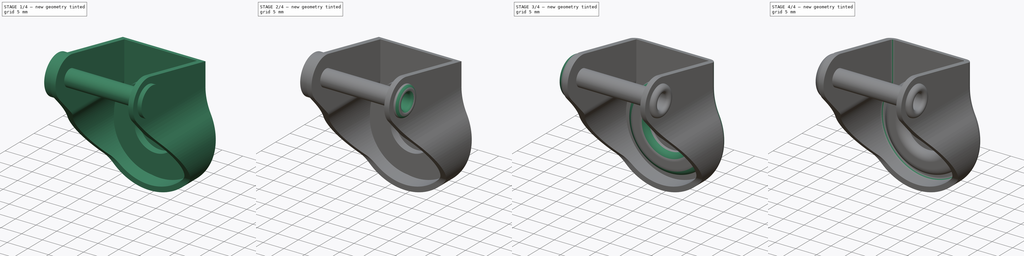
[diagram: build sequence overview — one tinted view per stage of 4, left to right]
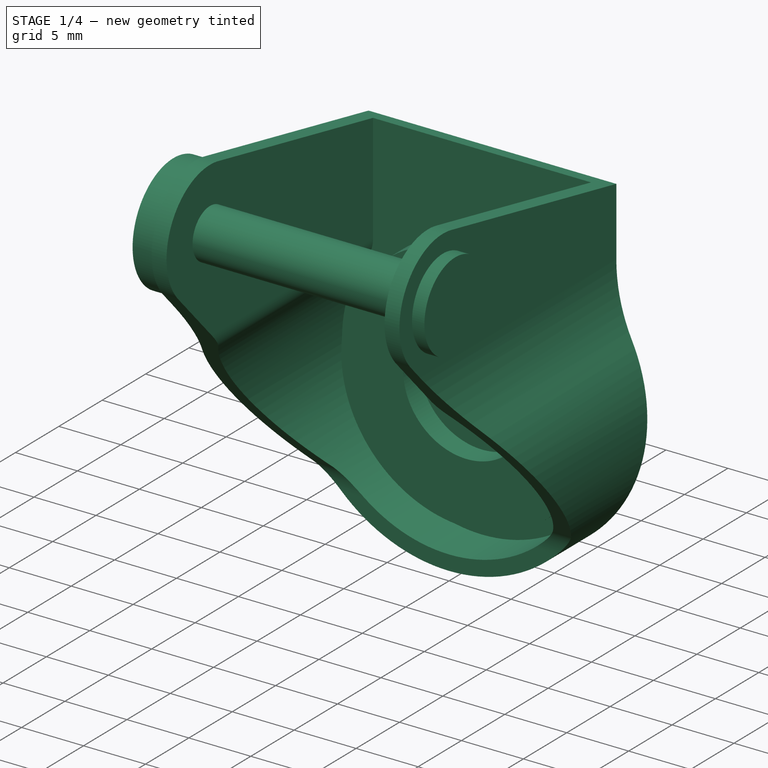
[diagram: stage 1 of 4 — iso view after this stage's code; geometry added in this stage tinted green]
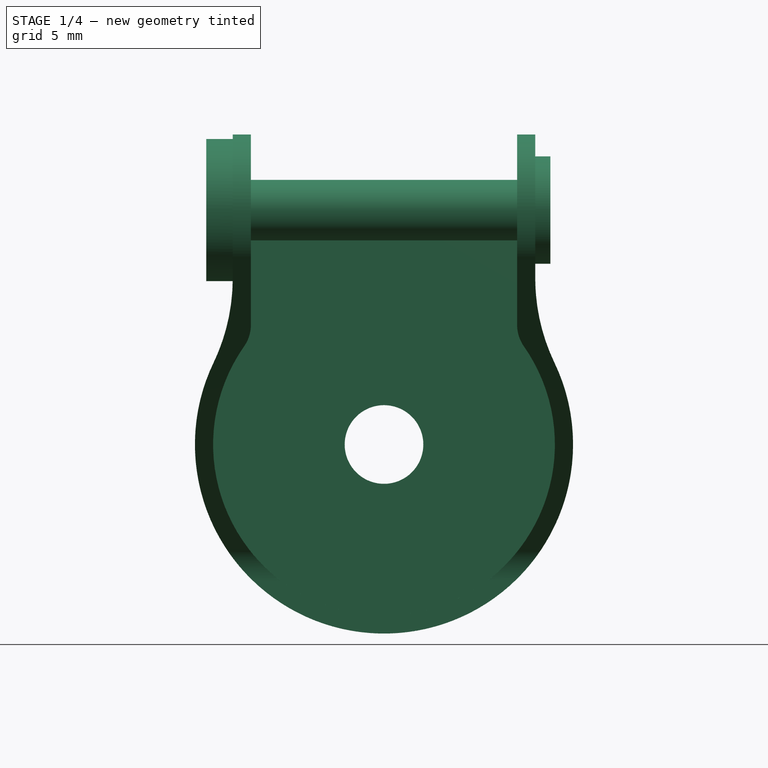
[diagram: stage 1 of 4 — front view after this stage's code; geometry added in this stage tinted green]
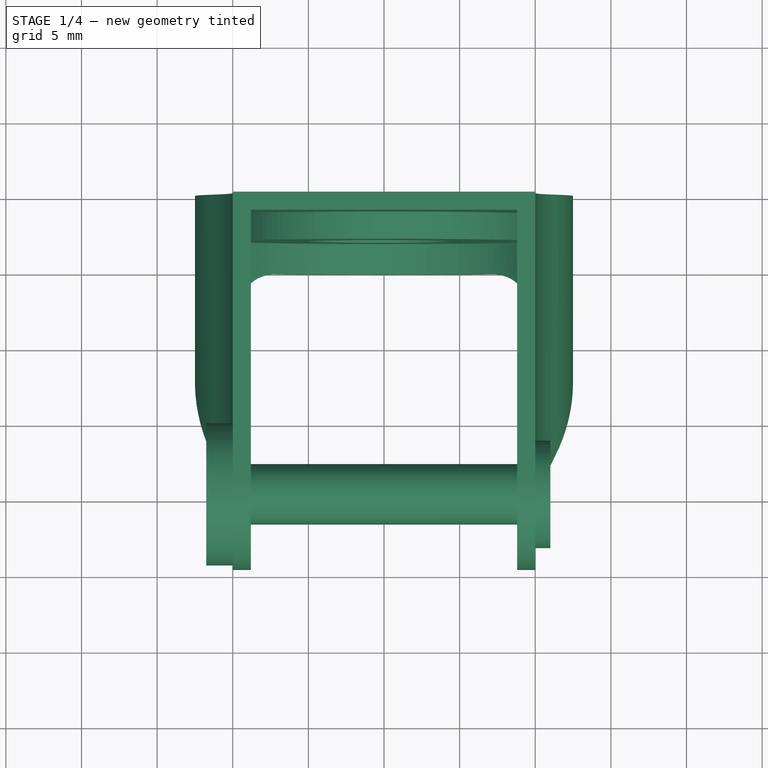
[diagram: stage 1 of 4 — top view after this stage's code; geometry added in this stage tinted green]
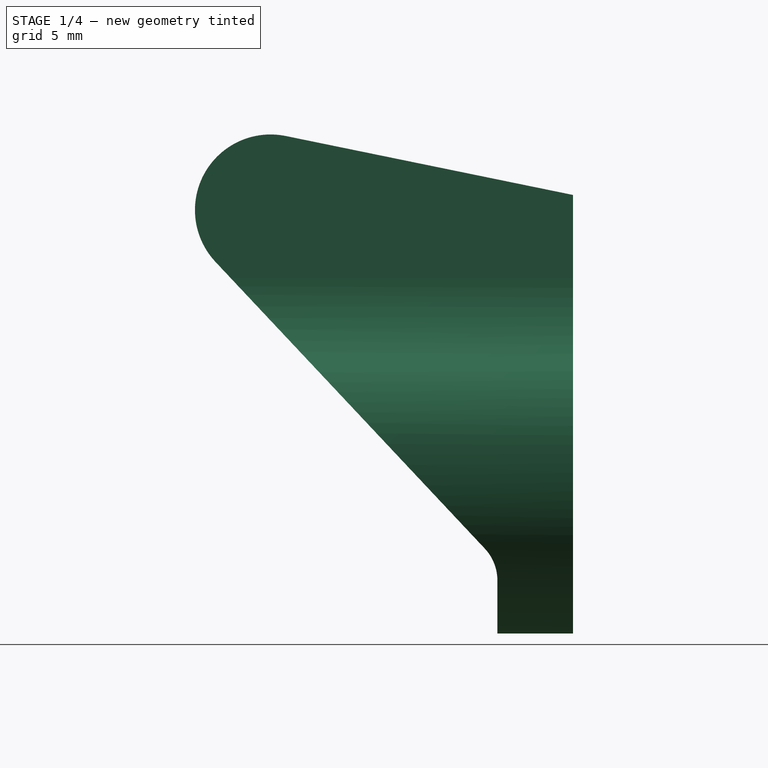
[diagram: stage 1 of 4 — right view after this stage's code; geometry added in this stage tinted green]
FCSTD DOCUMENT  (FreeCAD 0.17R13522 (Git))
Label: Caster-40mm_Wheel_support
License: All rights reserved
LicenseURL: http://en.wikipedia.org/wiki/All_rights_reserved
objects: Sketcher::SketchObject×9, PartDesign::Fillet×7, PartDesign::Pocket×6, PartDesign::Pad×4, PartDesign::Plane×1, PartDesign::Body×1
note: 38 computed .brp shape members not serialized (recipe doc carries the construction recipe); baked Part::Feature solids carry a one-line shape summary decoded from their .brp

FEATURE [Sketcher::SketchObject] Sketch
  MapMode = 5
  Placement = pos=(0,0,0) rot=(1,0,0;1.5708rad)
  Support = -> [XZ_Plane]
  sketch-geometry (7):
    g0: ArcOfCircle CenterX=0 CenterY=0 CenterZ=0 NormalX=0 NormalY=0 NormalZ=1 AngleXU=0 Radius=12.5 StartAngle=2.69464 EndAngle=6.73014
    g1: Circle CenterX=0 CenterY=0 CenterZ=0 NormalX=0 NormalY=0 NormalZ=1 AngleXU=0 Radius=2.6
    g2: LineSegment StartX=10 StartY=20.5 StartZ=0 EndX=-10 EndY=20.5 EndZ=0
    g3: ArcOfCircle CenterX=-22.95 CenterY=11 CenterZ=0 NormalX=0 NormalY=0 NormalZ=1 AngleXU=0 Radius=12.95 StartAngle=5.83623 EndAngle=6.28319
    g4: ArcOfCircle CenterX=22.95 CenterY=11 CenterZ=0 NormalX=0 NormalY=0 NormalZ=1 AngleXU=0 Radius=12.95 StartAngle=3.14159 EndAngle=3.58855
    g5: LineSegment StartX=-10 StartY=11 StartZ=0 EndX=-10 EndY=20.5 EndZ=0
    g6: LineSegment StartX=10 StartY=11 StartZ=0 EndX=10 EndY=20.5 EndZ=0
  constraints (20):
    c: Coincident(g0,g-1)
    c: Radius(g0) = 12.5
    c: Coincident(g1,g-1)
    c: Radius(g1) = 2.6
    c: Horizontal(g2)
    c: DistanceX(g2,g2) = 20
    c: DistanceY(g2) = 20.5
    c: Symmetric(g2,g2,g-2)
    c: Coincident(g5,g2)
    c: Vertical(g5)
    c: Coincident(g6,g2)
    c: Vertical(g6)
    c: Equal(g6,g5)
    c: Tangent(g5,g3) = -1.5708
    c: Tangent(g6,g4) = 1.5708
    c: Tangent(g3,g0) = 1.5708
    c: Tangent(g4,g0) = 1.5708
    c: Symmetric(g0,g0,g-2)
    c: Equal(g3,g4)
    c: DistanceY(g6,g6) = 9.5
FEATURE [PartDesign::Pad] Pad
  Length = 25
  Length2 = 100
  Placement = pos=(0,0,0) rot=(1,0,0;1.5708rad)
  Profile = -> Sketch
  Type = 0
FEATURE [Sketcher::SketchObject] Sketch001
  MapMode = 5
  Placement = pos=(10,0,0) rot=(0.707107,0,0.707107;3.14159rad)
  Support = -> [Pad]
  sketch-geometry (10):
    g0: LineSegment StartX=-12.5 StartY=5 StartZ=0 EndX=-9 EndY=5 EndZ=0
    g1: LineSegment StartX=-6.87283 StartY=5.84245 StartZ=0 EndX=12.0765 EndY=23.6442 EndZ=0
    g2: LineSegment StartX=20.3979 StartY=18.9949 StartZ=0 EndX=16.5 EndY=0 EndZ=0
    g3: LineSegment StartX=16.5 StartY=0 StartZ=0 EndX=21 EndY=0 EndZ=0
    g4: LineSegment StartX=21 StartY=0 StartZ=0 EndX=21 EndY=26 EndZ=0
    g5: LineSegment StartX=21 StartY=26 StartZ=0 EndX=-12.5 EndY=26 EndZ=0
    g6: LineSegment StartX=-12.5 StartY=26 StartZ=0 EndX=-12.5 EndY=5 EndZ=0
    g7: ArcOfCircle CenterX=15.5 CenterY=20 CenterZ=0 NormalX=0 NormalY=0 NormalZ=1 AngleXU=0 Radius=5 StartAngle=6.08079 EndAngle=8.60816
    g8: ArcOfCircle CenterX=-9 CenterY=8.10676 CenterZ=0 NormalX=0 NormalY=0 NormalZ=1 AngleXU=0 Radius=3.10676 StartAngle=4.71239 EndAngle=5.46657
    g9: Circle CenterX=15.5 CenterY=20 CenterZ=0 NormalX=0 NormalY=0 NormalZ=1 AngleXU=0 Radius=2
  constraints (26):
    c: Horizontal(g0)
    c: Coincident(g2,g3)
    c: Horizontal(g3)
    c: Coincident(g3,g4)
    c: Vertical(g4)
    c: Coincident(g4,g5)
    c: Horizontal(g5)
    c: Coincident(g5,g6)
    c: Vertical(g6)
    c: Coincident(g0,g6)
    c: Tangent(g7,g1) = 1.5708
    c: Tangent(g7,g2) = 1.5708
    c: DistanceY(g7) = 20
    c: DistanceX(g7) = 15.5
    c: Radius(g7) = 5
    c: DistanceX(g0) = -12.5
    c: DistanceY(g0) = 5
    c: DistanceY(g5) = 26
    c: PointOnObject(g2,g-1)
    c: Tangent(g0,g8) = -1.5708
    c: Tangent(g1,g8) = -1.5708
    c: DistanceX(g0,g0) = 3.5
    c: Radius(g9) = 2
    c: Coincident(g9,g7)
    c: DistanceX(g3) = 21
    c: DistanceX(g3,g3) = 4.5
FEATURE [PartDesign::Pocket] Pocket
  BaseFeature = -> Pad
  Length = 5
  Length2 = 100
  Midplane = true
  Placement = pos=(0,0,0) rot=(1,0,0;1.5708rad)
  Profile = -> Sketch001
  Type = 1
FEATURE [PartDesign::Plane] DatumPlane
  AttachmentOffset = pos=(0,0,-26) rot=(0,0,1;0rad)
  MapMode = 5
  Placement = pos=(0,-26,-3e-12) rot=(-1,0,0;1.5708rad)
  Support = -> [Pocket]
FEATURE [Sketcher::SketchObject] Sketch002
  MapMode = 5
  Placement = pos=(0,-26,-3e-12) rot=(-1,0,0;1.5708rad)
  Support = -> [DatumPlane]
  sketch-geometry (6):
    g0: LineSegment StartX=-8.8 StartY=-22 StartZ=0 EndX=8.8 EndY=-22 EndZ=0
    g1: LineSegment StartX=8.8 StartY=-22 StartZ=0 EndX=8.8 EndY=-7.92149 EndZ=0
    g2: LineSegment StartX=-8.8 StartY=-7.92149 StartZ=0 EndX=-8.8 EndY=-22 EndZ=0
    g3: ArcOfCircle CenterX=-11.3 CenterY=-7.92149 CenterZ=0 NormalX=0 NormalY=0 NormalZ=1 AngleXU=0 Radius=2.5 StartAngle=0 EndAngle=0.611408
    g4: ArcOfCircle CenterX=11.3 CenterY=-7.92149 CenterZ=0 NormalX=0 NormalY=0 NormalZ=1 AngleXU=0 Radius=2.5 StartAngle=2.53018 EndAngle=3.14159
    g5: ArcOfCircle CenterX=0 CenterY=0 CenterZ=0 NormalX=0 NormalY=0 NormalZ=1 AngleXU=0 Radius=11.3 StartAngle=5.67178 EndAngle=10.0362
  constraints (17):
    c: Coincident(g0,g1)
    c: Coincident(g2,g0)
    c: Vertical(g1)
    c: Vertical(g2)
    c: Symmetric(g0,g0,g-2)
    c: DistanceX(g0,g0) = 17.6
    c: Tangent(g5,g4) = 1.5708
    c: Tangent(g4,g1) = 1.5708
    c: Tangent(g3,g5) = 1.5708
    c: Tangent(g2,g3) = 1.5708
    c: Radius(g5) = 11.3
    c: Radius(g3) = 2.5
    c: Equal(g3,g4)
    c: Equal(g2,g1)
    c: Symmetric(g3,g4,g-2)
    c: DistanceY(g0) = -22
    c: Coincident(g5,g-1)
FEATURE [PartDesign::Pocket] Pocket001
  BaseFeature = -> Pocket
  Length = 23
  Length2 = 100
  Placement = pos=(0,0,0) rot=(1,0,0;1.5708rad)
  Profile = -> Sketch002
  Reversed = true
  Type = 0
FEATURE [Sketcher::SketchObject] Sketch003
  MapMode = 5
  Placement = pos=(0,-3,0) rot=(1,0,0;1.5708rad)
  Support = -> [Pocket001]
  sketch-geometry (7):
    g0: Circle CenterX=0 CenterY=0 CenterZ=0 NormalX=0 NormalY=0 NormalZ=1 AngleXU=0 Radius=10.1
    g1: LineSegment StartX=8.8 StartY=7.92149 StartZ=0 EndX=8.8 EndY=17.4215 EndZ=0
    g2: LineSegment StartX=8.8 StartY=17.4215 StartZ=0 EndX=-8.8 EndY=17.4215 EndZ=0
    g3: LineSegment StartX=-8.8 StartY=17.4215 StartZ=0 EndX=-8.8 EndY=7.92149 EndZ=0
    g4: ArcOfCircle CenterX=0 CenterY=0 CenterZ=0 NormalX=0 NormalY=0 NormalZ=1 AngleXU=0 Radius=11.3 StartAngle=2.53018 EndAngle=6.89459
    g5: ArcOfCircle CenterX=-11.3 CenterY=7.92149 CenterZ=0 NormalX=0 NormalY=0 NormalZ=1 AngleXU=0 Radius=2.5 StartAngle=5.67178 EndAngle=6.28319
    g6: ArcOfCircle CenterX=11.3 CenterY=7.92149 CenterZ=0 NormalX=0 NormalY=0 NormalZ=1 AngleXU=0 Radius=2.5 StartAngle=3.14159 EndAngle=3.753
  constraints (19):
    c: Coincident(g1,g2)
    c: Coincident(g2,g3)
    c: Horizontal(g2)
    c: Vertical(g1)
    c: Vertical(g3)
    c: Coincident(g0,g-1)
    c: DistanceX(g2,g2) = 17.6
    c: Symmetric(g2,g1,g-2)
    c: Tangent(g5,g3) = 1.5708
    c: Tangent(g5,g4) = 1.5708
    c: Tangent(g4,g6) = 1.5708
    c: Tangent(g6,g1) = 1.5708
    c: Radius(g0) = 10.1
    c: Radius(g4) = 11.3
    c: Coincident(g-1,g4)
    c: Radius(g5) = 2.5
    c: Equal(g5,g6)
    c: Equal(g3,g1)
    c: DistanceY(g3,g3) = 9.5
FEATURE [PartDesign::Pocket] Pocket002
  BaseFeature = -> Pocket001
  Length = 1.8
  Length2 = 100
  Placement = pos=(0,0,0) rot=(1,0,0;1.5708rad)
  Profile = -> Sketch003
  Type = 0
FEATURE [Sketcher::SketchObject] Sketch004
  MapMode = 5
  Placement = pos=(0,0,0) rot=(-1,0,0;1.5708rad)
  Support = -> [Pocket002]
  sketch-geometry (2):
    g0: Circle CenterX=0 CenterY=0 CenterZ=0 NormalX=0 NormalY=0 NormalZ=1 AngleXU=0 Radius=8.9
    g1: Circle CenterX=0 CenterY=0 CenterZ=0 NormalX=0 NormalY=0 NormalZ=1 AngleXU=0 Radius=6.3
  constraints (2):
    c: Radius(g0) = 8.9
    c: Radius(g1) = 6.3
FEATURE [PartDesign::Pocket] Pocket003
  BaseFeature = -> Pocket002
  Length = 1.8
  Length2 = 100
  Placement = pos=(0,0,0) rot=(1,0,0;1.5708rad)
  Profile = -> Sketch004
  Type = 0
FEATURE [Sketcher::SketchObject] Sketch005
  MapMode = 5
  Placement = pos=(0,-3,0) rot=(1,0,0;1.5708rad)
  sketch-geometry (1):
    g0: Circle CenterX=0 CenterY=0 CenterZ=0 NormalX=0 NormalY=0 NormalZ=1 AngleXU=0 Radius=5.1
  constraints (2):
    c: Radius(g0) = 5.1
    c: Coincident(g0,g-1)
FEATURE [PartDesign::Pocket] Pocket004
  BaseFeature = -> Pocket003
  Length = 1.8
  Length2 = 100
  Placement = pos=(0,0,0) rot=(1,0,0;1.5708rad)
  Profile = -> Sketch005
  Type = 0
FEATURE [PartDesign::Body] Body
  Group = -> [Sketch,Pad,Sketch001,Pocket,DatumPlane,Sketch002,Pocket001,Sketch003,Pocket002,Sketch004,Pocket003,Sketch005,Pocket004,Sketch006,Pad001,Sketch007,Pad003,Pad004,Sketch008,Pocket005,Fillet,Fillet001,Fillet002,Fillet003,Fillet004,Fillet005,Fillet006]
  Origin = -> Origin
  Tip = -> Fillet006
FEATURE [Sketcher::SketchObject] Sketch006
  MapMode = 5
  Placement = pos=(10,0,0) rot=(0.707107,0,0.707107;3.14159rad)
  Support = -> [Pad001]
  sketch-geometry (1):
    g0: Circle CenterX=15.5 CenterY=20 CenterZ=0 NormalX=0 NormalY=0 NormalZ=1 AngleXU=0 Radius=3.55
  constraints (3):
    c: Radius(g0) = 3.55
    c: DistanceX(g0) = 15.5
    c: DistanceY(g0) = 20
FEATURE [PartDesign::Pad] Pad001
  BaseFeature = -> Pocket004
  Length = 1
  Length2 = 100
  Placement = pos=(0,0,0) rot=(1,0,0;1.5708rad)
  Profile = -> Sketch006
  Type = 0
FEATURE [Sketcher::SketchObject] Sketch007
  MapMode = 5
  Placement = pos=(-10,0,0) rot=(0.707107,0,-0.707107;3.14159rad)
  Support = -> [Pad001]
  sketch-geometry (1):
    g0: Circle CenterX=-15.5 CenterY=20 CenterZ=0 NormalX=0 NormalY=0 NormalZ=1 AngleXU=0 Radius=4.7
  constraints (3):
    c: Radius(g0) = 4.7
    c: DistanceX(g0) = -15.5
    c: DistanceY(g0) = 20
FEATURE [PartDesign::Pad] Pad003
  BaseFeature = -> Pad001
  Length = 1.75
  Length2 = 100
  Placement = pos=(0,0,0) rot=(1,0,0;1.5708rad)
  Profile = -> Sketch007
  Type = 0
FEATURE [PartDesign::Pad] Pad004
  BaseFeature = -> Pad003
  Length = 20
  Length2 = 100
  Placement = pos=(0,0,0) rot=(1,0,0;1.5708rad)
  Profile = -> Pad003 [Face40]
  Type = 0
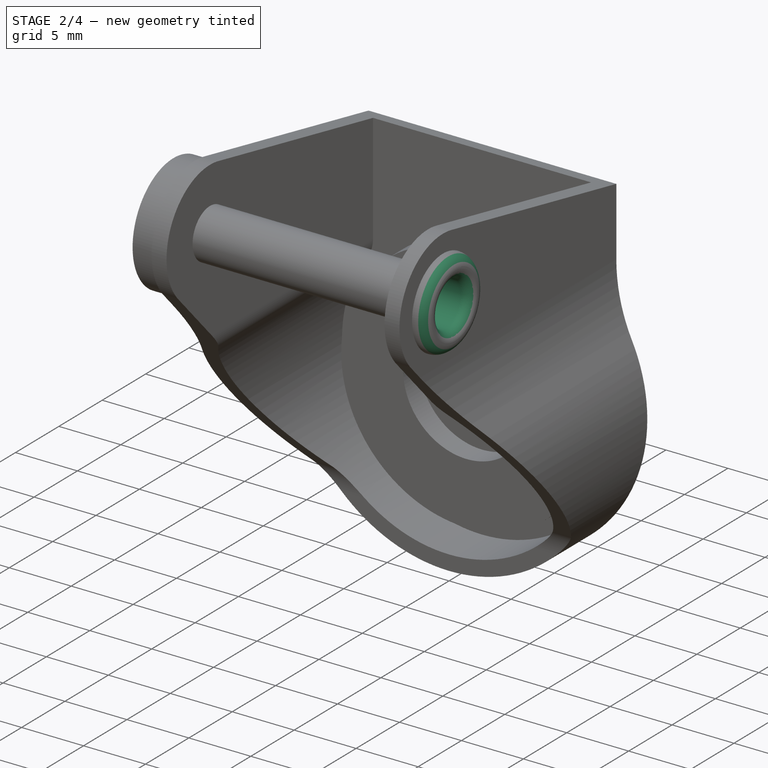
[diagram: stage 2 of 4 — iso view after this stage's code; geometry added in this stage tinted green]
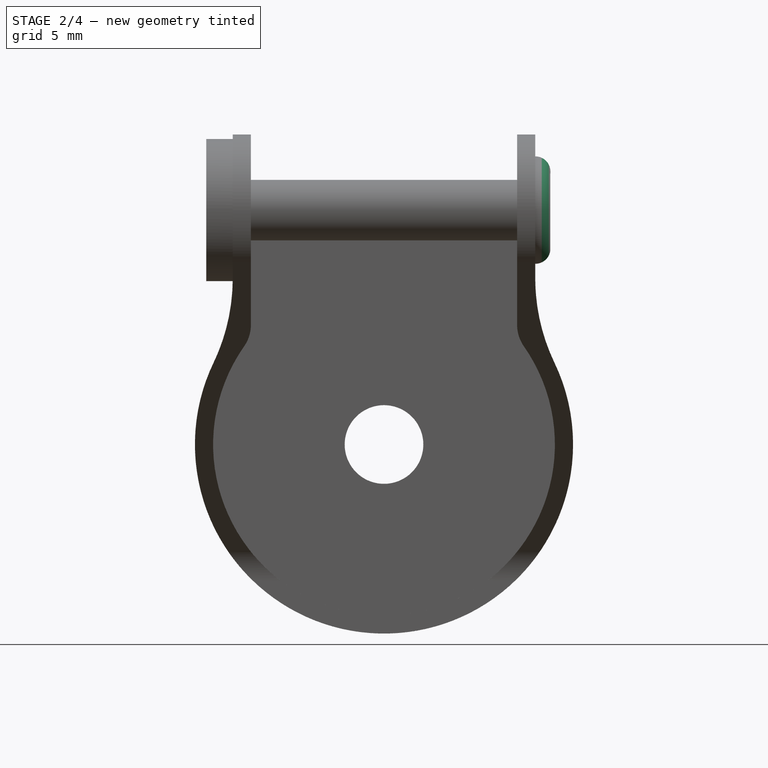
[diagram: stage 2 of 4 — front view after this stage's code; geometry added in this stage tinted green]
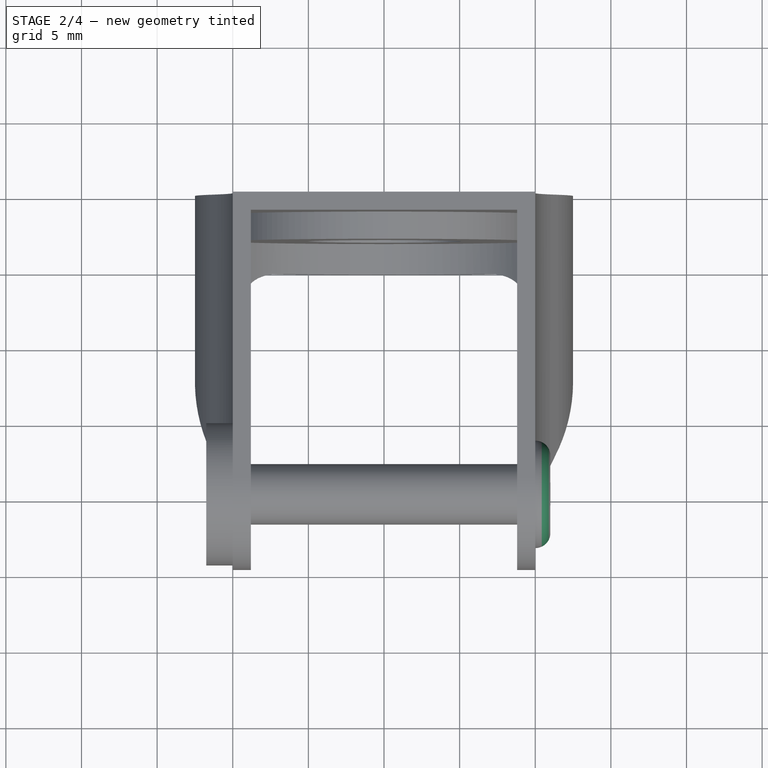
[diagram: stage 2 of 4 — top view after this stage's code; geometry added in this stage tinted green]
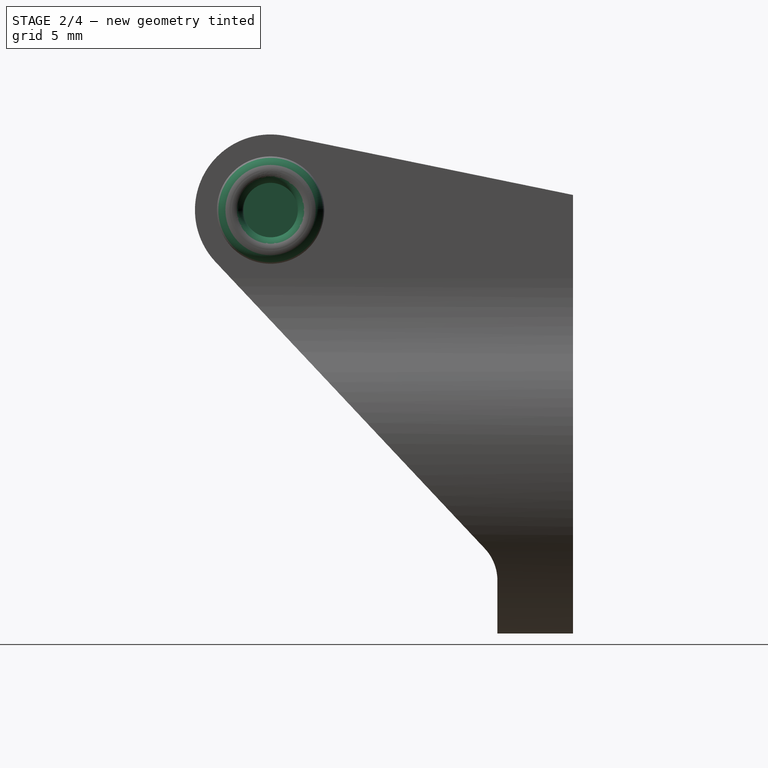
[diagram: stage 2 of 4 — right view after this stage's code; geometry added in this stage tinted green]
FEATURE [Sketcher::SketchObject] Sketch008
  MapMode = 5
  Placement = pos=(11,0,0) rot=(0.707107,0,0.707107;3.14159rad)
  Support = -> [Pad004]
  sketch-geometry (1):
    g0: Circle CenterX=15.5 CenterY=20 CenterZ=0 NormalX=0 NormalY=0 NormalZ=1 AngleXU=0 Radius=1.8
  constraints (3):
    c: Radius(g0) = 1.8
    c: DistanceX(g0) = 15.5
    c: DistanceY(g0) = 20
FEATURE [PartDesign::Pocket] Pocket005
  BaseFeature = -> Pad004
  Length = 3
  Length2 = 100
  Placement = pos=(0,0,0) rot=(1,0,0;1.5708rad)
  Profile = -> Sketch008
  Type = 0
FEATURE [PartDesign::Fillet] Fillet
  Base = -> Pocket005 [Edge86]
  BaseFeature = -> Pocket005
  Placement = pos=(0,0,0) rot=(1,0,0;1.5708rad)
  Radius = 0.99
FEATURE [PartDesign::Fillet] Fillet001
  Base = -> Fillet [Edge13]
  BaseFeature = -> Fillet
  Placement = pos=(0,0,0) rot=(1,0,0;1.5708rad)
  Radius = 0.79
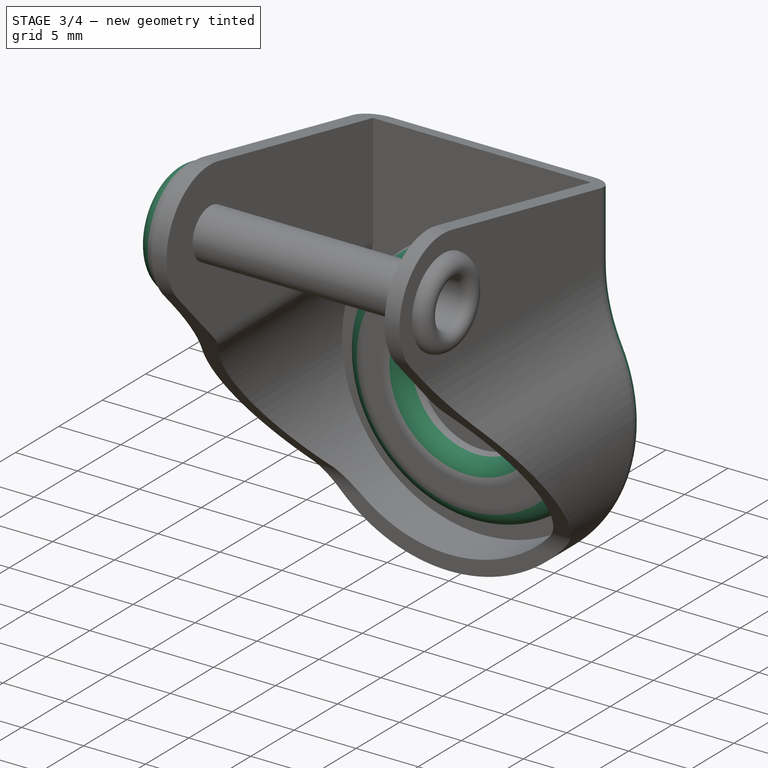
[diagram: stage 3 of 4 — iso view after this stage's code; geometry added in this stage tinted green]
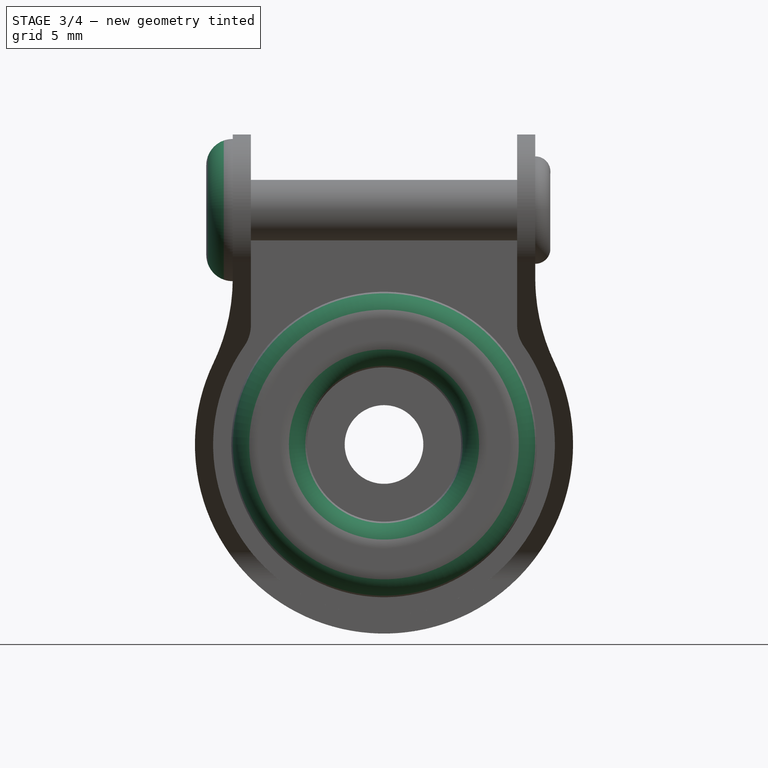
[diagram: stage 3 of 4 — front view after this stage's code; geometry added in this stage tinted green]
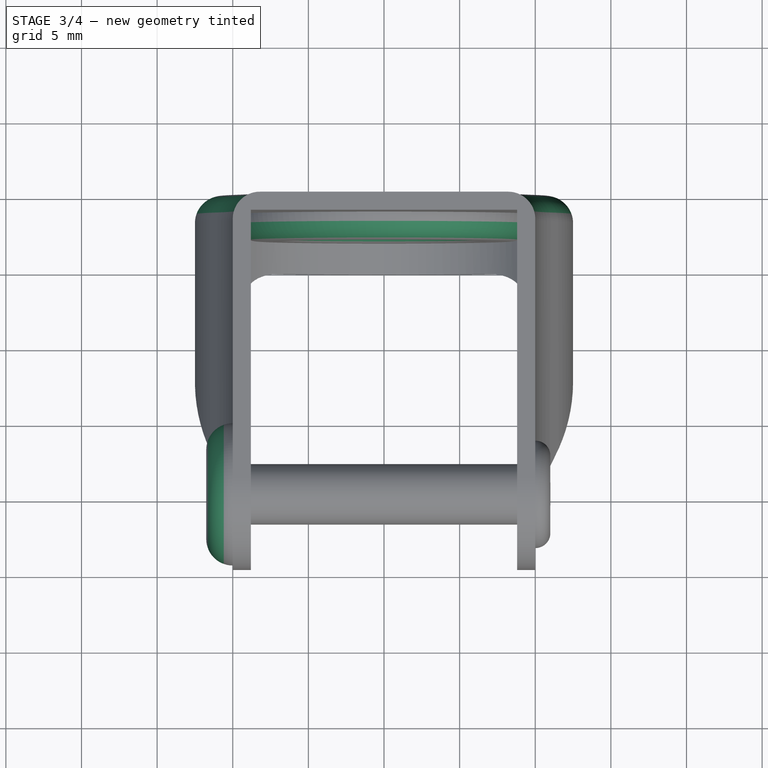
[diagram: stage 3 of 4 — top view after this stage's code; geometry added in this stage tinted green]
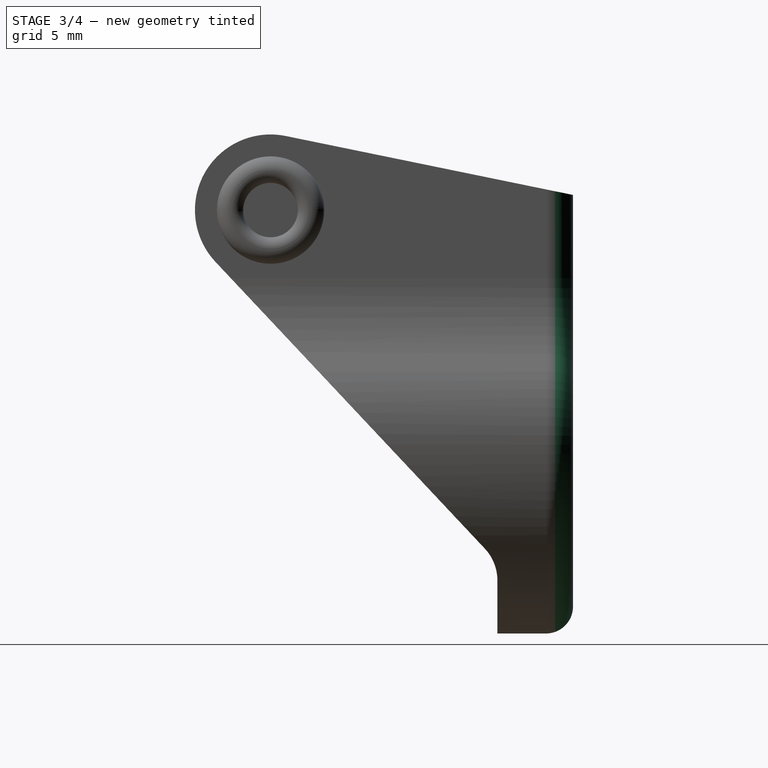
[diagram: stage 3 of 4 — right view after this stage's code; geometry added in this stage tinted green]
FEATURE [PartDesign::Fillet] Fillet002
  Base = -> Fillet001 [Edge91]
  BaseFeature = -> Fillet001
  Placement = pos=(0,0,0) rot=(1,0,0;1.5708rad)
  Radius = 1.74
FEATURE [PartDesign::Fillet] Fillet003
  Base = -> Fillet002 [Edge19,Edge98,Edge104]
  BaseFeature = -> Fillet002
  Placement = pos=(0,0,0) rot=(1,0,0;1.5708rad)
  Radius = 1.79
FEATURE [PartDesign::Fillet] Fillet005
  Base = -> Fillet003 [Edge110,Edge100]
  BaseFeature = -> Fillet003
  Placement = pos=(0,0,0) rot=(1,0,0;1.5708rad)
  Radius = 1
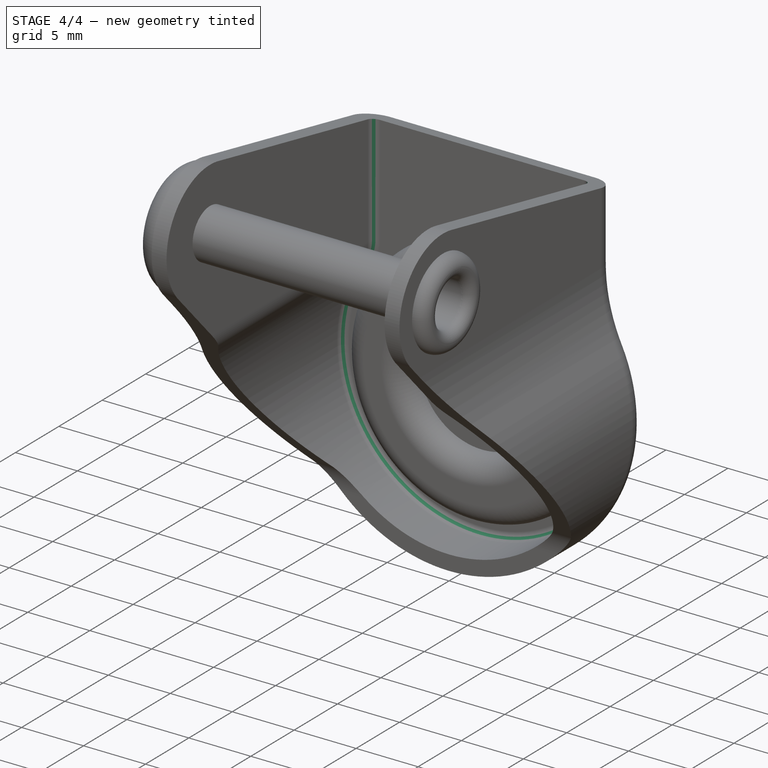
[diagram: stage 4 of 4 — iso view after this stage's code; geometry added in this stage tinted green]
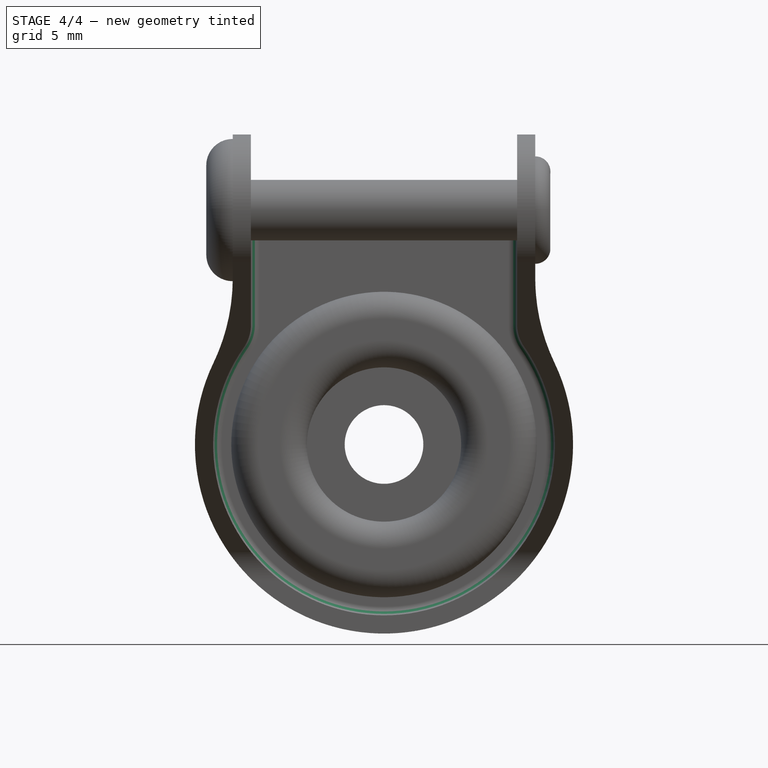
[diagram: stage 4 of 4 — front view after this stage's code; geometry added in this stage tinted green]
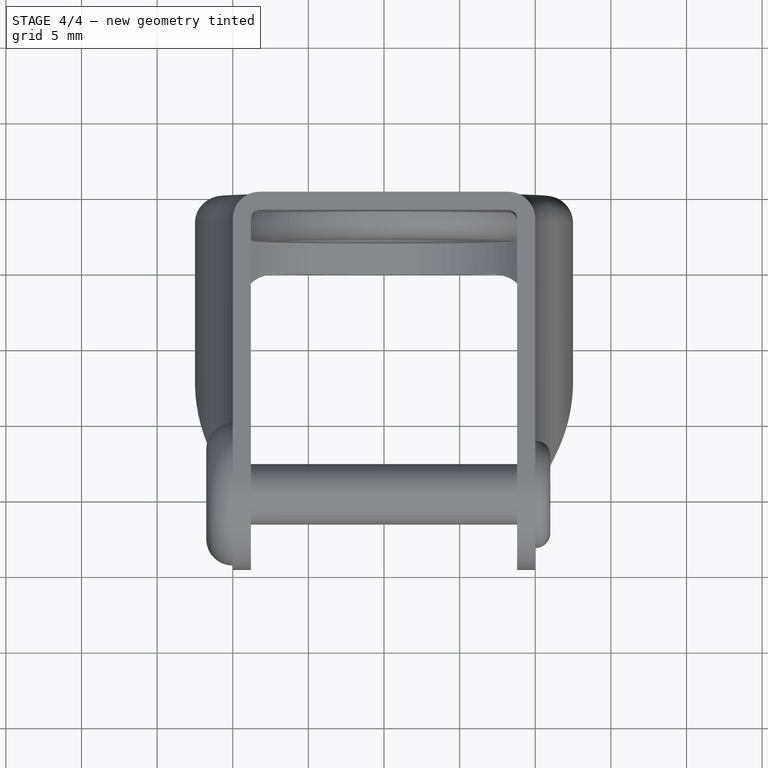
[diagram: stage 4 of 4 — top view after this stage's code; geometry added in this stage tinted green]
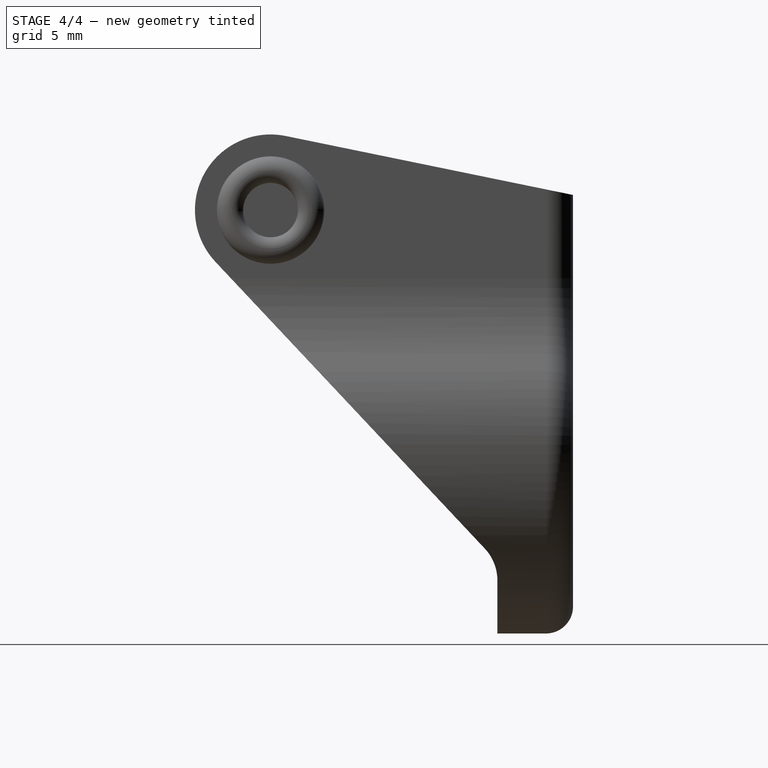
[diagram: stage 4 of 4 — right view after this stage's code; geometry added in this stage tinted green]
FEATURE [PartDesign::Fillet] Fillet004
  Base = -> Fillet003 [Edge94]
  BaseFeature = -> Fillet003
  Placement = pos=(0,0,0) rot=(1,0,0;1.5708rad)
  Radius = 0.59
FEATURE [PartDesign::Fillet] Fillet006
  Base = -> Fillet005 [Edge3,Edge85]
  BaseFeature = -> Fillet005
  Placement = pos=(0,0,0) rot=(1,0,0;1.5708rad)
  Radius = 1.79
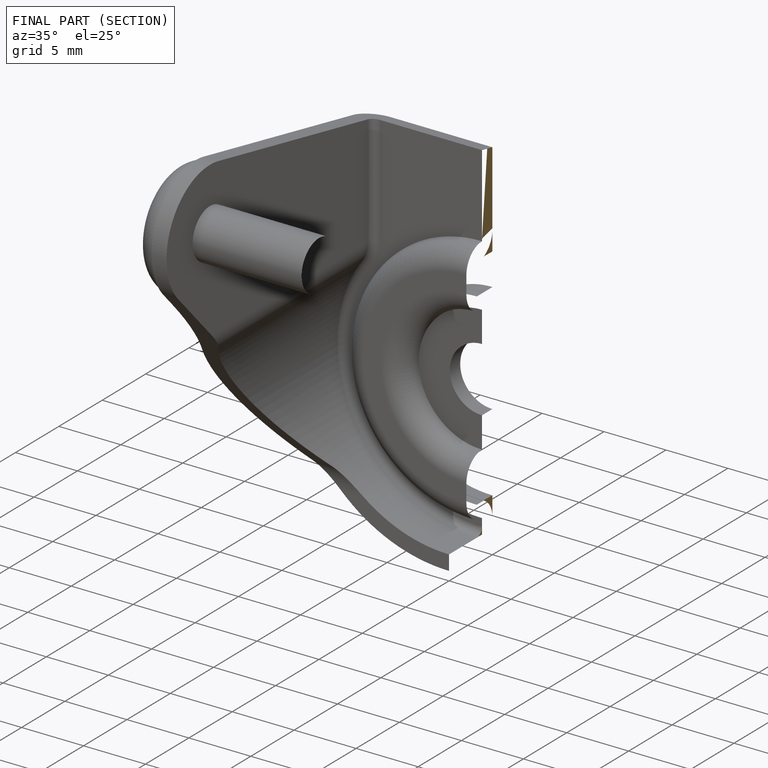
[diagram: finished part — half-section view (interior)]
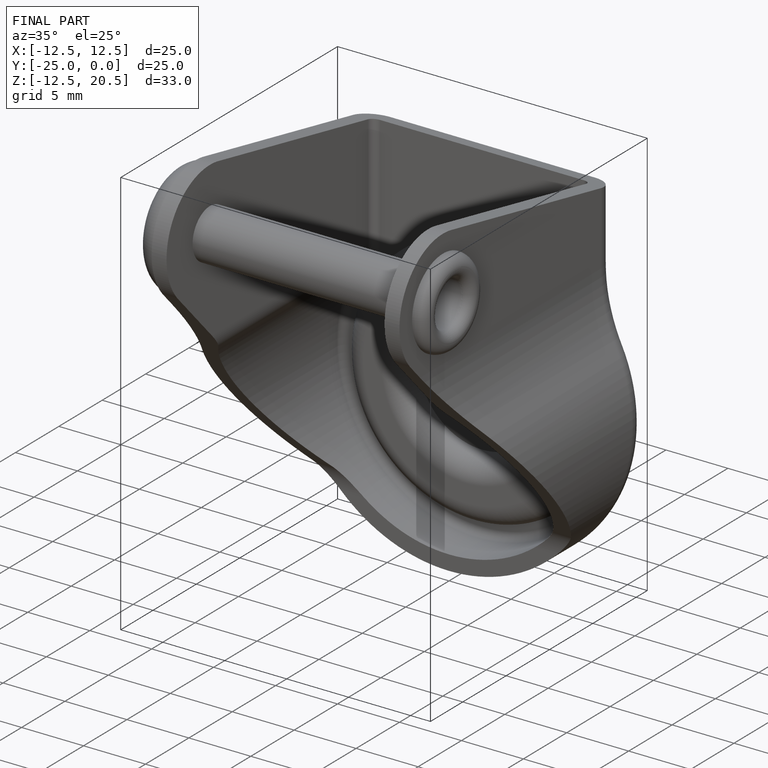
[diagram: finished part — iso view with bounding-box wireframe]
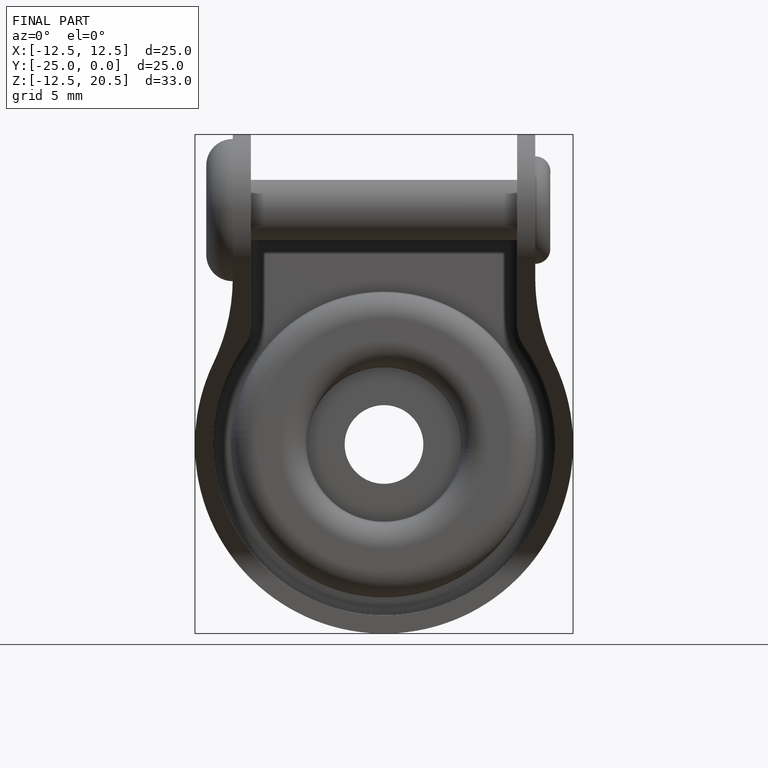
[diagram: finished part — front view with bounding-box wireframe]
